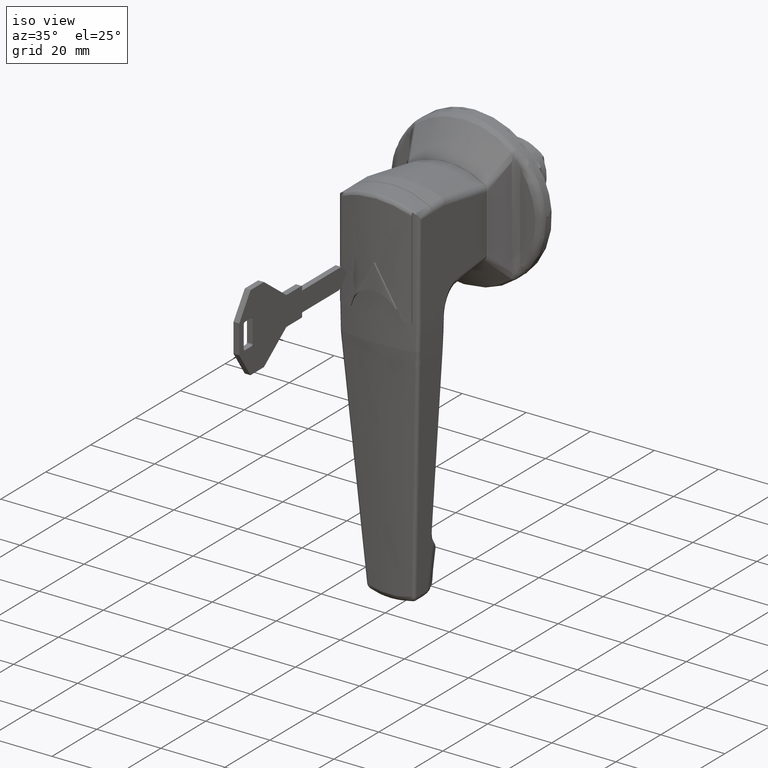
[diagram: clean part render]
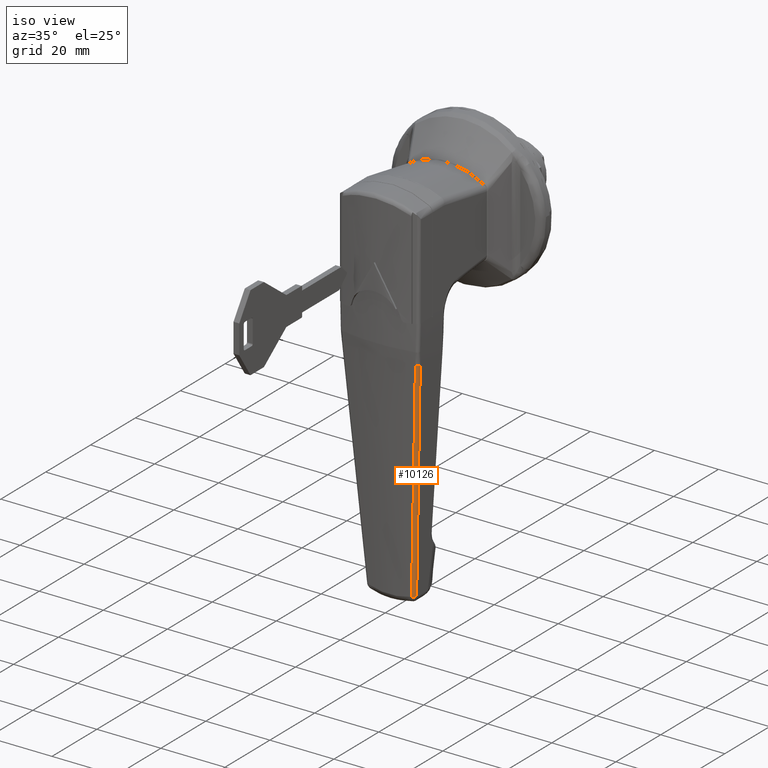
[diagram: same view with one face highlighted and labeled with its STEP entity id]
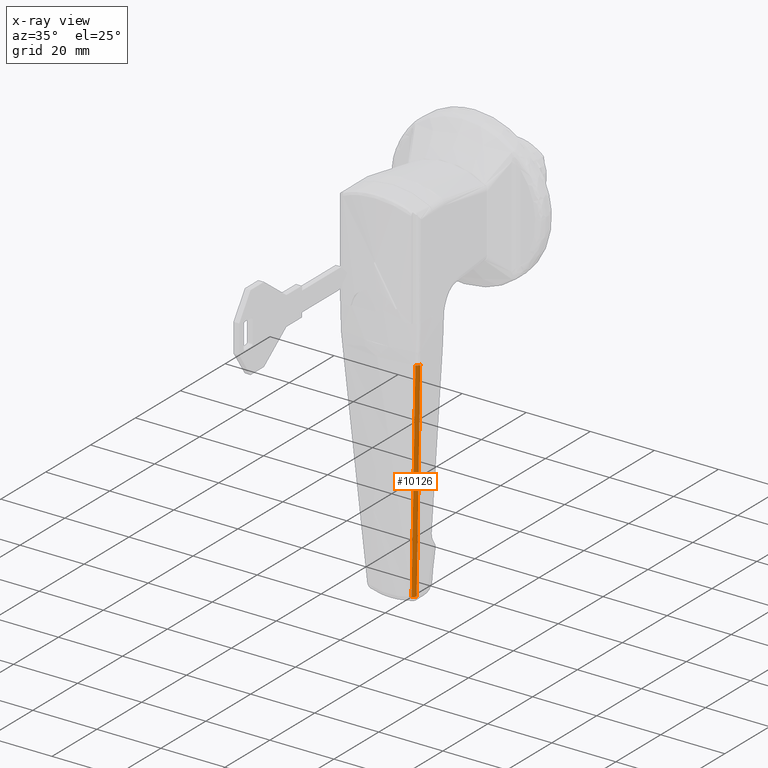
[diagram: x-ray of the same camera — body ghosted, the highlighted face saturated]
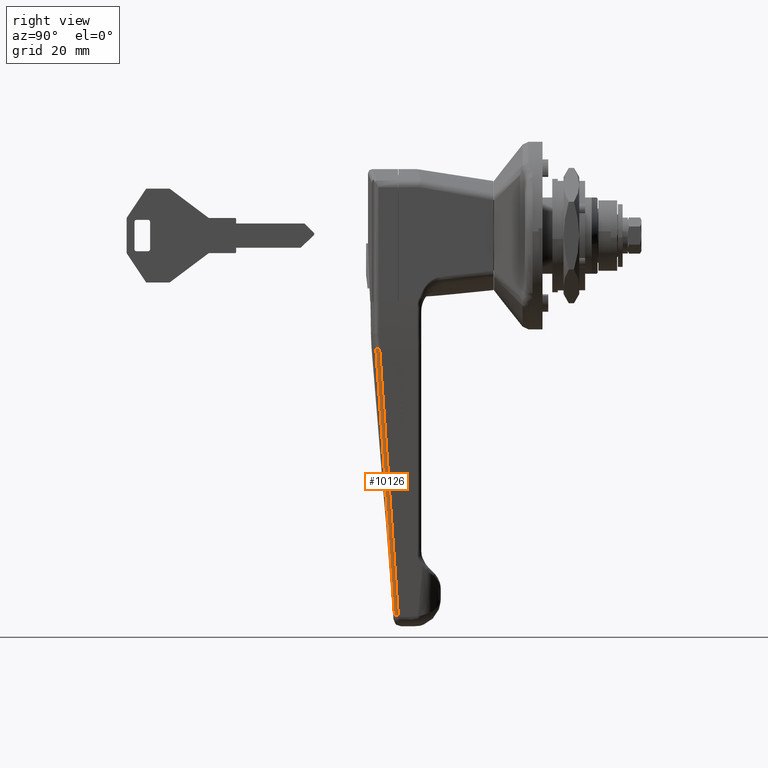
[diagram: same view with one face highlighted and labeled with its STEP entity id]
A machine part, iso view. The second image highlights one B-rep face of the part: STEP entity #10126.
The next image is the same camera in x-ray: the body ghosted, the highlighted face saturated — about 0% of this face is hidden behind the body in this view.
A second angle (right view) of the same face is appended — the face is thin or edge-on in the first view.
In plain terms, the highlighted face is a freeform B-spline surface patch.
Its self-contained STEP definition (entity closure, byte-faithful):
#8584=CARTESIAN_POINT('',(-37.843350285108762,-6.721442861657480,-97.221635429455205));
#8585=VERTEX_POINT('',#8584);
#8586=CARTESIAN_POINT('',(-36.852808266133707,-7.607287943265270,-97.207654371133003));
#8587=VERTEX_POINT('',#8586);
#8588=CARTESIAN_POINT('',(-37.843350285108791,-6.721442861657490,-97.221635429455105));
#8589=CARTESIAN_POINT('',(-37.739632021216984,-7.603096634903768,-97.271754829369058));
#8590=CARTESIAN_POINT('',(-36.852808266133707,-7.607287943265275,-97.207654371132961));
#8598=(BOUNDED_CURVE()B_SPLINE_CURVE(2,(#8588,#8589,#8590),.UNSPECIFIED.,.F.,.U.)CURVE()GEOMETRIC_REPRESENTATION_ITEM()QUASI_UNIFORM_CURVE()RATIONAL_B_SPLINE_CURVE((1.0,0.747313443282713,1.0))REPRESENTATION_ITEM(''));
#8599=EDGE_CURVE('',#8585,#8587,#8598,.T.);
#9852=CARTESIAN_POINT('',(-42.615893900489901,-11.263684811303101,-28.910993423007650));
#9853=VERTEX_POINT('',#9852);
#9854=CARTESIAN_POINT('',(-41.636799778329149,-12.073825860416800,-28.897928022205701));
#9855=VERTEX_POINT('',#9854);
#9856=CARTESIAN_POINT('',(-42.615893900489901,-11.263684811303101,-28.910993423007660));
#9857=CARTESIAN_POINT('',(-42.457885937416918,-12.070220139434747,-28.953072704315041));
#9858=CARTESIAN_POINT('',(-41.636799778329149,-12.073825860416781,-28.897928022205679));
#9866=(BOUNDED_CURVE()B_SPLINE_CURVE(2,(#9856,#9857,#9858),.UNSPECIFIED.,.F.,.U.)CURVE()GEOMETRIC_REPRESENTATION_ITEM()QUASI_UNIFORM_CURVE()RATIONAL_B_SPLINE_CURVE((1.0,0.772152102210621,1.0))REPRESENTATION_ITEM(''));
#9867=EDGE_CURVE('',#9853,#9855,#9866,.T.);
#10048=CARTESIAN_POINT('',(-42.639935214073233,-11.280042405807139,-28.571238627738545));
#10049=CARTESIAN_POINT('',(-42.632327248435949,-11.272518444312874,-28.684382245358002));
#10050=CARTESIAN_POINT('',(-42.624719288942849,-11.264994488894942,-28.797525771602853));
#10051=CARTESIAN_POINT('',(-41.095644119638010,-9.752802761933474,-51.537520208471015));
#10052=CARTESIAN_POINT('',(-39.503092870104489,-8.237121903478800,-74.329981973703596));
#10053=CARTESIAN_POINT('',(-37.835829382577778,-6.707259344924793,-97.335708463652338));
#10054=CARTESIAN_POINT('',(-37.827535246904723,-6.699648737653252,-97.450155051244408));
#10055=CARTESIAN_POINT('',(-37.819241118234686,-6.692038136807601,-97.564601542205395));
#10056=CARTESIAN_POINT('',(-42.639325219280998,-11.283144153592332,-28.571414331466514));
#10057=CARTESIAN_POINT('',(-42.631717913382538,-11.275620812439298,-28.684553310131168));
#10058=CARTESIAN_POINT('',(-42.624110610559377,-11.268097474327636,-28.797692243058407));
#10059=CARTESIAN_POINT('',(-41.095105138605440,-9.755968220702895,-51.537689789887139));
#10060=CARTESIAN_POINT('',(-39.502627799751721,-8.240347045639751,-74.330159757811444));
#10061=CARTESIAN_POINT('',(-37.835443293602737,-6.710541612246471,-97.335899946918971));
#10062=CARTESIAN_POINT('',(-37.827149197619079,-6.702930965042111,-97.450351476788370));
#10063=CARTESIAN_POINT('',(-37.818855105141338,-6.695320321054771,-97.564802958279159));
#10064=CARTESIAN_POINT('',(-42.480219131246791,-12.092178857629694,-28.617243465044769));
#10065=CARTESIAN_POINT('',(-42.472775513515337,-12.084860052027587,-28.729174812581096));
#10066=CARTESIAN_POINT('',(-42.465331115612919,-12.077540479336156,-28.841117891723055));
#10067=CARTESIAN_POINT('',(-40.952998566840975,-10.590566224405526,-51.582401258809753));
#10068=CARTESIAN_POINT('',(-39.378654484694678,-9.100069801169262,-74.377551480532730));
#10069=CARTESIAN_POINT('',(-37.731343626449480,-7.595526571140277,-97.387528834589034));
#10070=CARTESIAN_POINT('',(-37.723054292878217,-7.587955649936387,-97.503315953213402));
#10071=CARTESIAN_POINT('',(-37.714764020343637,-7.580383871146387,-97.619116187470865));
#10072=CARTESIAN_POINT('',(-41.656526615994409,-12.096032685954610,-28.558304312813149));
#10073=CARTESIAN_POINT('',(-41.648895529837198,-12.088635042782512,-28.671441375586628));
#10074=CARTESIAN_POINT('',(-41.641264446764573,-12.081237402600616,-28.784578392628962));
#10075=CARTESIAN_POINT('',(-40.107479332188667,-10.594372394581574,-51.524190973897177));
#10076=CARTESIAN_POINT('',(-38.511208731965056,-9.104071239054392,-74.316354837690454));
#10077=CARTESIAN_POINT('',(-36.841190572259109,-7.599820064397309,-97.321865594980324));
#10078=CARTESIAN_POINT('',(-36.832882379056144,-7.592336547339589,-97.436315984033953));
#10079=CARTESIAN_POINT('',(-36.824574189364590,-7.584853033444763,-97.550766324715170));
#10080=CARTESIAN_POINT('',(-41.653369049047519,-12.096047459332670,-28.558078373745442));
#10081=CARTESIAN_POINT('',(-41.645737411012220,-12.088649513178202,-28.671220070229271));
#10082=CARTESIAN_POINT('',(-41.638105779139536,-12.081251572997589,-28.784361675351022));
#10083=CARTESIAN_POINT('',(-40.104272834481009,-10.594386828878811,-51.523970220616285));
#10084=CARTESIAN_POINT('',(-38.507955006604689,-9.104086248154241,-74.316125293574061));
#10085=CARTESIAN_POINT('',(-36.837889531575371,-7.599835986373702,-97.321622089636662));
#10086=CARTESIAN_POINT('',(-36.829581456770072,-7.592352792518351,-97.436067535742069));
#10087=CARTESIAN_POINT('',(-36.821273388978703,-7.584869604980548,-97.550512885228983));
#10095=(BOUNDED_SURFACE()B_SPLINE_SURFACE(3,2,((#10048,#10056,#10064,#10072,#10080),(#10049,#10057,#10065,#10073,#10081),(#10050,#10058,#10066,#10074,#10082),(#10051,#10059,#10067,#10075,#10083),(#10052,#10060,#10068,#10076,#10084),(#10053,#10061,#10069,#10077,#10085),(#10054,#10062,#10070,#10078,#10086),(#10055,#10063,#10071,#10079,#10087)),.UNSPECIFIED.,.F.,.F.,.U.)B_SPLINE_SURFACE_WITH_KNOTS((4,2,2,4),(3,1,1,3),(0.0,0.346739250160034,69.694590832145749,70.041330082347230),(0.0,0.007608745240150,1.529173803870296,1.536781633570981),.UNSPECIFIED.)GEOMETRIC_REPRESENTATION_ITEM()RATIONAL_B_SPLINE_SURFACE(((1.002277540336457,1.001138770168229,0.772273503304598,1.001138633143135,1.002277266286270),(1.002277945055704,1.001138972527852,0.772233036273266,1.001138835478409,1.002277670956818),(1.002278349774951,1.001139174887475,0.772192569241933,1.001139037813683,1.002278075627365),(1.002359698345311,1.001179849172656,0.764058695763233,1.001179707204638,1.002359414409275),(1.002442524318847,1.001221262159423,0.755777099829785,1.001221115208294,1.002442230416589),(1.002527594352658,1.001263797176329,0.747271125000915,1.001263645107078,1.002527290214156),(1.002528017586648,1.001264008793324,0.747228806719121,1.001263856698609,1.002527713397219),(1.002528440820638,1.001264220410319,0.747186488437326,1.001264068290141,1.002528136580282)))REPRESENTATION_ITEM('')SURFACE());
#10096=CARTESIAN_POINT('',(-37.843350285108762,-6.721442861657480,-97.221635429455205));
#10097=CARTESIAN_POINT('',(-40.332782749299028,-9.005764020021500,-62.867915545465507));
#10098=CARTESIAN_POINT('',(-42.615893900489901,-11.263684811303101,-28.910993423007650));
#10106=(BOUNDED_CURVE()B_SPLINE_CURVE(2,(#10096,#10097,#10098),.UNSPECIFIED.,.F.,.U.)CURVE()GEOMETRIC_REPRESENTATION_ITEM()QUASI_UNIFORM_CURVE()RATIONAL_B_SPLINE_CURVE((1.0,0.999266857087362,1.0))REPRESENTATION_ITEM(''));
#10107=EDGE_CURVE('',#8585,#9853,#10106,.T.);
#10108=ORIENTED_EDGE('',*,*,#10107,.F.);
#10109=ORIENTED_EDGE('',*,*,#8599,.T.);
#10110=CARTESIAN_POINT('',(-41.636799778329070,-12.073825860416809,-28.897928022205669));
#10111=CARTESIAN_POINT('',(-39.346519064385454,-9.853537082323241,-62.854276688756208));
#10112=CARTESIAN_POINT('',(-36.852808266133692,-7.607287943265280,-97.207654371133017));
#10120=(BOUNDED_CURVE()B_SPLINE_CURVE(2,(#10110,#10111,#10112),.UNSPECIFIED.,.F.,.U.)CURVE()GEOMETRIC_REPRESENTATION_ITEM()QUASI_UNIFORM_CURVE()RATIONAL_B_SPLINE_CURVE((1.0,0.999266857087360,1.0))REPRESENTATION_ITEM(''));
#10121=EDGE_CURVE('',#9855,#8587,#10120,.T.);
#10122=ORIENTED_EDGE('',*,*,#10121,.F.);
#10123=ORIENTED_EDGE('',*,*,#9867,.F.);
#10124=EDGE_LOOP('',(#10108,#10109,#10122,#10123));
#10125=FACE_OUTER_BOUND('',#10124,.T.);
#10126=ADVANCED_FACE('',(#10125),#10095,.T.);